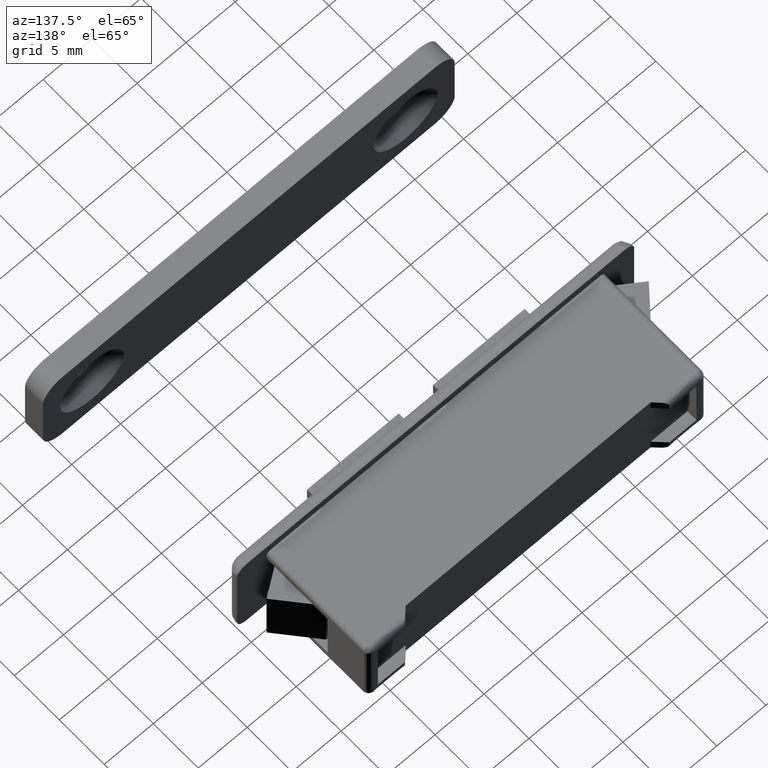
[diagram: clean part render]
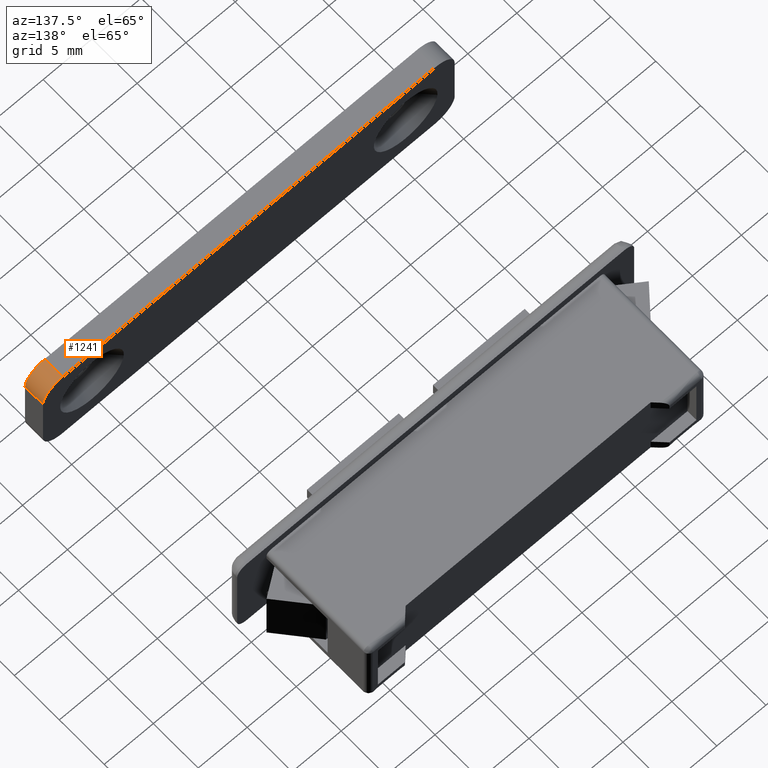
[diagram: same view with one face highlighted and labeled with its STEP entity id]
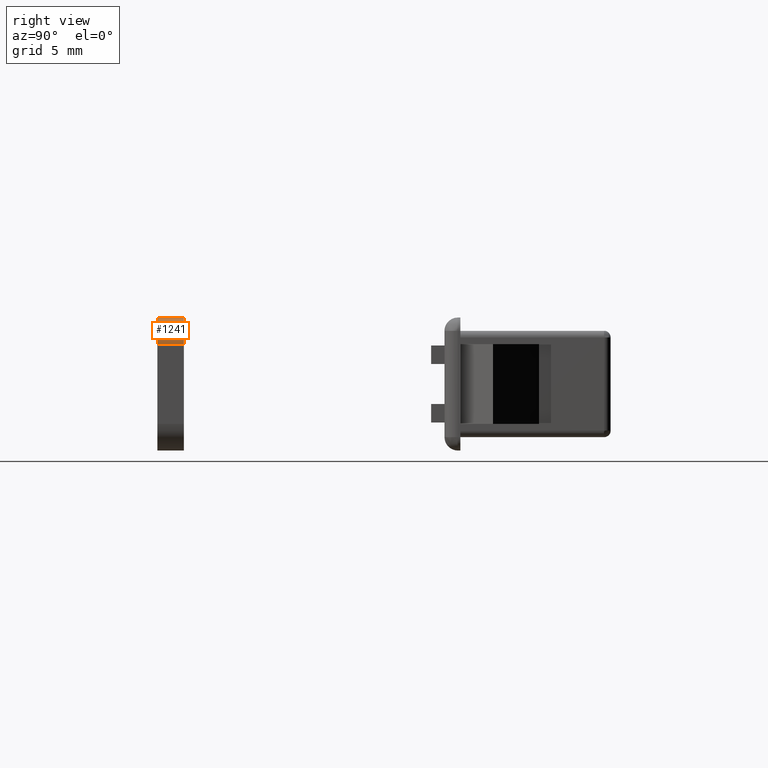
[diagram: same view with one face highlighted and labeled with its STEP entity id]
A machine part, auxiliary view. The second image highlights one B-rep face of the part: STEP entity #1241.
A second angle (right view) of the same face is appended — the face is thin or edge-on in the first view.
In plain terms, the highlighted face is a freeform B-spline surface patch.
Its self-contained STEP definition (entity closure, byte-faithful):
#1002=CARTESIAN_POINT('',(21.0,-32.095919398666737,-3.0));
#1003=VERTEX_POINT('',#1002);
#1011=CARTESIAN_POINT('',(19.0,-32.095919398666737,-5.0));
#1012=VERTEX_POINT('',#1011);
#1013=CARTESIAN_POINT('',(19.0,-32.095919398666737,-5.0));
#1014=CARTESIAN_POINT('',(21.000000000000004,-32.095919398666744,-5.000000000000001));
#1015=CARTESIAN_POINT('',(21.0,-32.095919398666737,-3.0));
#1023=(BOUNDED_CURVE()B_SPLINE_CURVE(2,(#1013,#1014,#1015),.UNSPECIFIED.,.F.,.U.)CURVE()GEOMETRIC_REPRESENTATION_ITEM()QUASI_UNIFORM_CURVE()RATIONAL_B_SPLINE_CURVE((1.0,0.707106781186548,1.0))REPRESENTATION_ITEM(''));
#1024=EDGE_CURVE('',#1012,#1003,#1023,.T.);
#1110=CARTESIAN_POINT('',(21.0,-34.095919398666652,-3.0));
#1111=VERTEX_POINT('',#1110);
#1178=CARTESIAN_POINT('',(19.0,-34.095919398666652,-5.0));
#1179=VERTEX_POINT('',#1178);
#1185=CARTESIAN_POINT('',(19.0,-34.095919398666652,-5.0));
#1186=CARTESIAN_POINT('',(21.000000000000004,-34.095919398666645,-5.000000000000001));
#1187=CARTESIAN_POINT('',(21.0,-34.095919398666652,-3.0));
#1195=(BOUNDED_CURVE()B_SPLINE_CURVE(2,(#1185,#1186,#1187),.UNSPECIFIED.,.F.,.U.)CURVE()GEOMETRIC_REPRESENTATION_ITEM()QUASI_UNIFORM_CURVE()RATIONAL_B_SPLINE_CURVE((1.0,0.707106781186548,1.0))REPRESENTATION_ITEM(''));
#1196=EDGE_CURVE('',#1179,#1111,#1195,.T.);
#1213=CARTESIAN_POINT('',(18.947646103384258,-34.145919398666663,-4.999314649951113));
#1214=CARTESIAN_POINT('',(18.947646103384258,-32.044669398666741,-4.999314649951113));
#1215=CARTESIAN_POINT('',(21.149969601109444,-34.145919398666649,-5.056984520332523));
#1216=CARTESIAN_POINT('',(21.149969601109444,-32.044669398666734,-5.056984520332523));
#1217=CARTESIAN_POINT('',(20.995048958761618,-34.145919398666656,-2.859359848748033));
#1218=CARTESIAN_POINT('',(20.995048958761618,-32.044669398666741,-2.859359848748033));
#1226=(BOUNDED_SURFACE()B_SPLINE_SURFACE(1,2,((#1213,#1215,#1217),(#1214,#1216,#1218)),.UNSPECIFIED.,.F.,.F.,.U.)B_SPLINE_SURFACE_WITH_KNOTS((2,2),(3,3),(0.0,2.101249999999915),(0.0,3.542284688176722),.UNSPECIFIED.)GEOMETRIC_REPRESENTATION_ITEM()RATIONAL_B_SPLINE_SURFACE(((1.0,0.670944223154768,0.996392648609106),(1.0,0.670944223154768,0.996392648609106)))REPRESENTATION_ITEM('')SURFACE());
#1227=ORIENTED_EDGE('',*,*,#1024,.T.);
#1228=CARTESIAN_POINT('',(21.0,-34.095919398666652,-3.0));
#1229=CARTESIAN_POINT('',(21.0,-32.095919398666737,-3.0));
#1230=QUASI_UNIFORM_CURVE('',1,(#1228,#1229),.UNSPECIFIED.,.F.,.U.);
#1231=EDGE_CURVE('',#1111,#1003,#1230,.T.);
#1232=ORIENTED_EDGE('',*,*,#1231,.F.);
#1233=ORIENTED_EDGE('',*,*,#1196,.F.);
#1234=CARTESIAN_POINT('',(19.0,-34.095919398666652,-5.0));
#1235=CARTESIAN_POINT('',(19.0,-32.095919398666737,-5.0));
#1236=QUASI_UNIFORM_CURVE('',1,(#1234,#1235),.UNSPECIFIED.,.F.,.U.);
#1237=EDGE_CURVE('',#1179,#1012,#1236,.T.);
#1238=ORIENTED_EDGE('',*,*,#1237,.T.);
#1239=EDGE_LOOP('',(#1227,#1232,#1233,#1238));
#1240=FACE_OUTER_BOUND('',#1239,.T.);
#1241=ADVANCED_FACE('',(#1240),#1226,.T.);